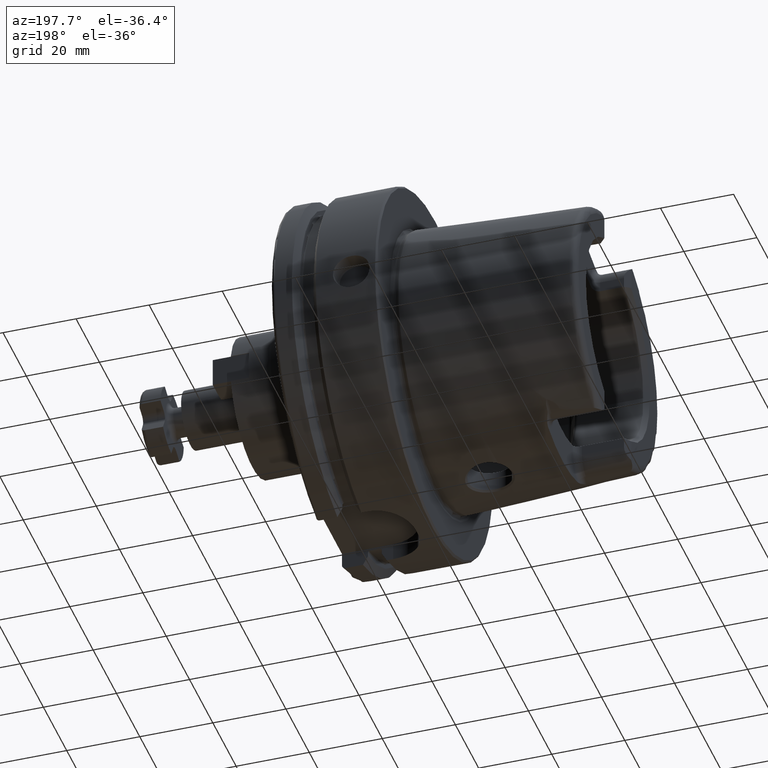
[diagram: clean part render]
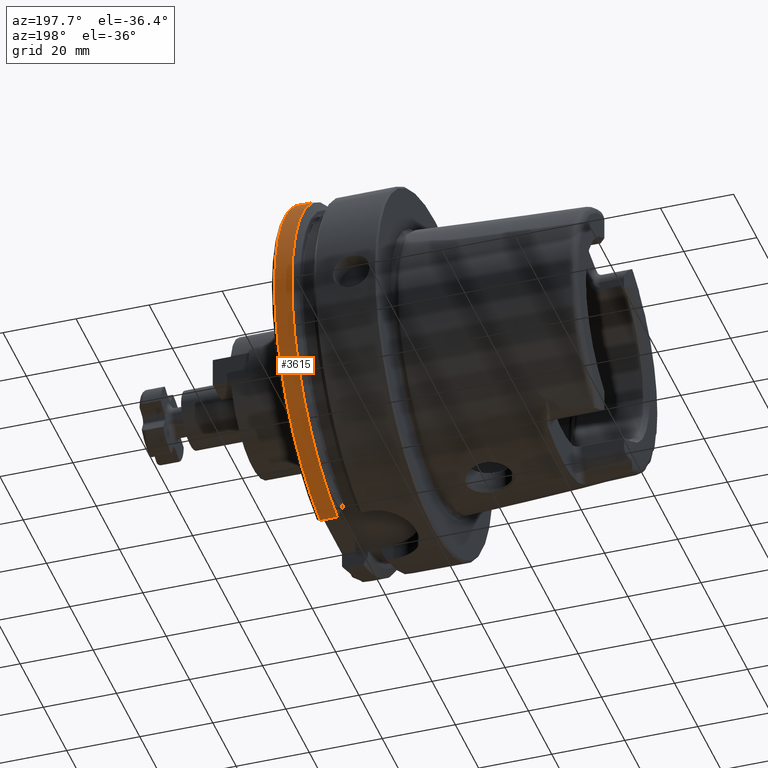
[diagram: same view with one face highlighted and labeled with its STEP entity id]
A machine part, auxiliary view. The second image highlights one B-rep face of the part: STEP entity #3615.
In plain terms, the highlighted cylindrical surface (partial cylindrical patch) has radius 50 mm, axis along (1, 0, 0).
Its self-contained STEP definition (entity closure, byte-faithful):
#793=CYLINDRICAL_SURFACE('',#4047,50.);
#896=FACE_OUTER_BOUND('',#1090,.T.);
#1090=EDGE_LOOP('',(#2997,#2998,#2999,#3000));
#1300=LINE('',#6704,#1490);
#1310=LINE('',#6786,#1500);
#1490=VECTOR('',#4742,10.);
#1500=VECTOR('',#4778,10.);
#1670=CIRCLE('',#4044,50.);
#1672=CIRCLE('',#4048,50.);
#1976=VERTEX_POINT('',#6654);
#1984=VERTEX_POINT('',#6700);
#1996=VERTEX_POINT('',#6769);
#1997=VERTEX_POINT('',#6784);
#2351=EDGE_CURVE('',#1976,#1984,#1300,.T.);
#2368=EDGE_CURVE('',#1976,#1996,#1670,.T.);
#2371=EDGE_CURVE('',#1984,#1997,#1672,.T.);
#2372=EDGE_CURVE('',#1997,#1996,#1310,.T.);
#2997=ORIENTED_EDGE('',*,*,#2351,.T.);
#2998=ORIENTED_EDGE('',*,*,#2371,.T.);
#2999=ORIENTED_EDGE('',*,*,#2372,.T.);
#3000=ORIENTED_EDGE('',*,*,#2368,.F.);
#3615=ADVANCED_FACE('',(#896),#793,.T.);
#4044=AXIS2_PLACEMENT_3D('',#6770,#4768,#4769);
#4047=AXIS2_PLACEMENT_3D('',#6783,#4774,#4775);
#4048=AXIS2_PLACEMENT_3D('',#6785,#4776,#4777);
#4742=DIRECTION('',(-1.,0.,0.));
#4768=DIRECTION('center_axis',(1.,0.,0.));
#4769=DIRECTION('ref_axis',(0.,0.,-1.));
#4774=DIRECTION('center_axis',(1.,0.,0.));
#4775=DIRECTION('ref_axis',(0.,1.,0.));
#4776=DIRECTION('center_axis',(1.,0.,0.));
#4777=DIRECTION('ref_axis',(0.,0.,-1.));
#4778=DIRECTION('',(1.,0.,0.));
#6654=CARTESIAN_POINT('',(28.,11.,-48.7749935930288));
#6700=CARTESIAN_POINT('',(23.2620290209214,11.,-48.7749935930288));
#6704=CARTESIAN_POINT('',(25.6310145104607,11.,-48.7749935930288));
#6769=CARTESIAN_POINT('',(28.,10.,48.9897948556636));
#6770=CARTESIAN_POINT('Origin',(28.,0.,0.));
#6783=CARTESIAN_POINT('Origin',(25.6310145104607,0.,0.));
#6784=CARTESIAN_POINT('',(23.2620290209214,10.,48.9897948556636));
#6785=CARTESIAN_POINT('Origin',(23.2620290209214,0.,0.));
#6786=CARTESIAN_POINT('',(25.6310145104607,10.,48.9897948556636));